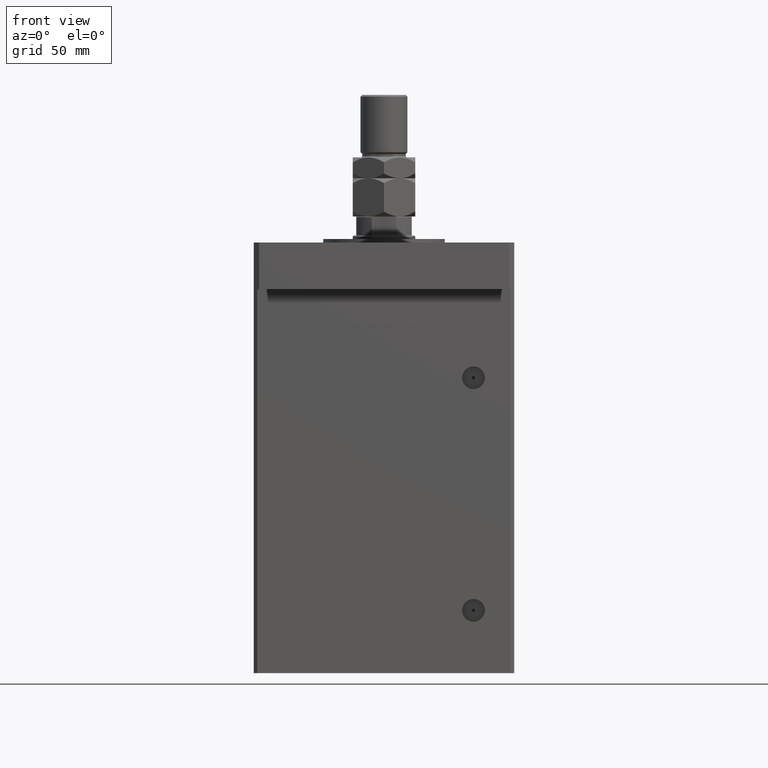
[diagram: clean part render]
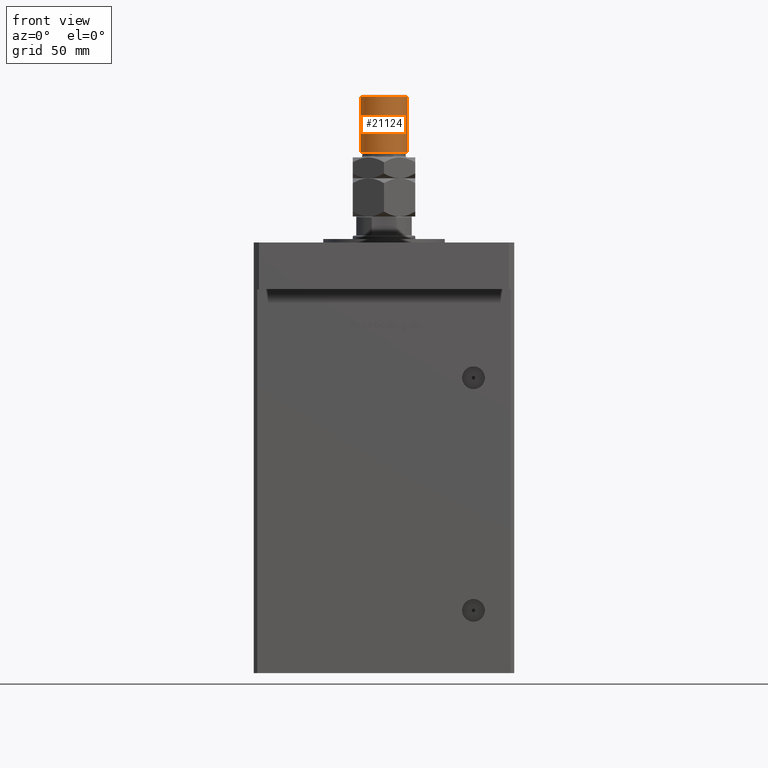
[diagram: same view with one face highlighted and labeled with its STEP entity id]
A machine part, front view. The second image highlights one B-rep face of the part: STEP entity #21124.
In plain terms, the highlighted cylindrical surface (edge-blend (fillet) strip) has radius 13.5 mm, axis along (-0, -0, -1).
Its self-contained STEP definition (entity closure, byte-faithful):
#597 = VERTEX_POINT ( 'NONE', #49847 ) ;
#859 = EDGE_LOOP ( 'NONE', ( #6587, #14375, #16039, #28973 ) ) ;
#3578 = CIRCLE ( 'NONE', #33933, 13.50000000000000000 ) ;
#4483 = CARTESIAN_POINT ( 'NONE',  ( 0.000000000000000000, 0.000000000000000000, 37.00000000000000000 ) ) ;
#4512 = AXIS2_PLACEMENT_3D ( 'NONE', #4483, #21219, #24563 ) ;
#5529 = EDGE_CURVE ( 'NONE', #46555, #29903, #3578, .T. ) ;
#5767 = EDGE_CURVE ( 'NONE', #597, #39669, #9834, .T. ) ;
#6558 = CARTESIAN_POINT ( 'NONE',  ( -13.50000000000000000, 0.000000000000000000, 68.99999999999998579 ) ) ;
#6587 = ORIENTED_EDGE ( 'NONE', *, *, #19780, .F. ) ;
#8897 = VECTOR ( 'NONE', #43915, 1000.000000000000000 ) ;
#9834 = CIRCLE ( 'NONE', #4512, 13.50000000000000000 ) ;
#11515 = DIRECTION ( 'NONE',  ( 0.000000000000000000, 0.000000000000000000, -1.000000000000000000 ) ) ;
#14375 = ORIENTED_EDGE ( 'NONE', *, *, #5529, .T. ) ;
#14975 = FACE_OUTER_BOUND ( 'NONE', #859, .T. ) ;
#16039 = ORIENTED_EDGE ( 'NONE', *, *, #40955, .T. ) ;
#19095 = AXIS2_PLACEMENT_3D ( 'NONE', #37049, #32048, #19439 ) ;
#19439 = DIRECTION ( 'NONE',  ( -1.000000000000000000, 0.000000000000000000, 0.000000000000000000 ) ) ;
#19780 = EDGE_CURVE ( 'NONE', #46555, #39669, #43557, .T. ) ;
#20170 = CARTESIAN_POINT ( 'NONE',  ( 0.000000000000000000, 0.000000000000000000, 68.99999999999998579 ) ) ;
#21124 = ADVANCED_FACE ( 'NONE', ( #14975 ), #41225, .T. ) ;
#21219 = DIRECTION ( 'NONE',  ( -0.000000000000000000, -0.000000000000000000, 1.000000000000000000 ) ) ;
#24563 = DIRECTION ( 'NONE',  ( 1.000000000000000000, 0.000000000000000000, 0.000000000000000000 ) ) ;
#26797 = CARTESIAN_POINT ( 'NONE',  ( 13.50000000000000000, 1.653273178848926867E-15, 70.00000000000000000 ) ) ;
#27431 = LINE ( 'NONE', #52024, #8897 ) ;
#28973 = ORIENTED_EDGE ( 'NONE', *, *, #5767, .T. ) ;
#29903 = VERTEX_POINT ( 'NONE', #6558 ) ;
#32048 = DIRECTION ( 'NONE',  ( -0.000000000000000000, -0.000000000000000000, -1.000000000000000000 ) ) ;
#33933 = AXIS2_PLACEMENT_3D ( 'NONE', #20170, #11515, #49485 ) ;
#35739 = DIRECTION ( 'NONE',  ( -0.000000000000000000, -0.000000000000000000, -1.000000000000000000 ) ) ;
#37049 = CARTESIAN_POINT ( 'NONE',  ( 0.000000000000000000, 0.000000000000000000, 70.00000000000000000 ) ) ;
#39168 = CARTESIAN_POINT ( 'NONE',  ( 13.50000000000000000, 1.653273178848926867E-15, 37.00000000000000000 ) ) ;
#39669 = VERTEX_POINT ( 'NONE', #39168 ) ;
#40955 = EDGE_CURVE ( 'NONE', #29903, #597, #27431, .T. ) ;
#41225 = CYLINDRICAL_SURFACE ( 'NONE', #19095, 13.50000000000000000 ) ;
#43557 = LINE ( 'NONE', #26797, #48483 ) ;
#43915 = DIRECTION ( 'NONE',  ( -0.000000000000000000, -0.000000000000000000, -1.000000000000000000 ) ) ;
#46555 = VERTEX_POINT ( 'NONE', #48454 ) ;
#48454 = CARTESIAN_POINT ( 'NONE',  ( 13.50000000000000000, 1.653273178848926867E-15, 68.99999999999998579 ) ) ;
#48483 = VECTOR ( 'NONE', #35739, 1000.000000000000000 ) ;
#49485 = DIRECTION ( 'NONE',  ( 1.000000000000000000, 0.000000000000000000, 0.000000000000000000 ) ) ;
#49847 = CARTESIAN_POINT ( 'NONE',  ( -13.50000000000000000, 0.000000000000000000, 37.00000000000000000 ) ) ;
#52024 = CARTESIAN_POINT ( 'NONE',  ( -13.50000000000000000, 0.000000000000000000, 70.00000000000000000 ) ) ;